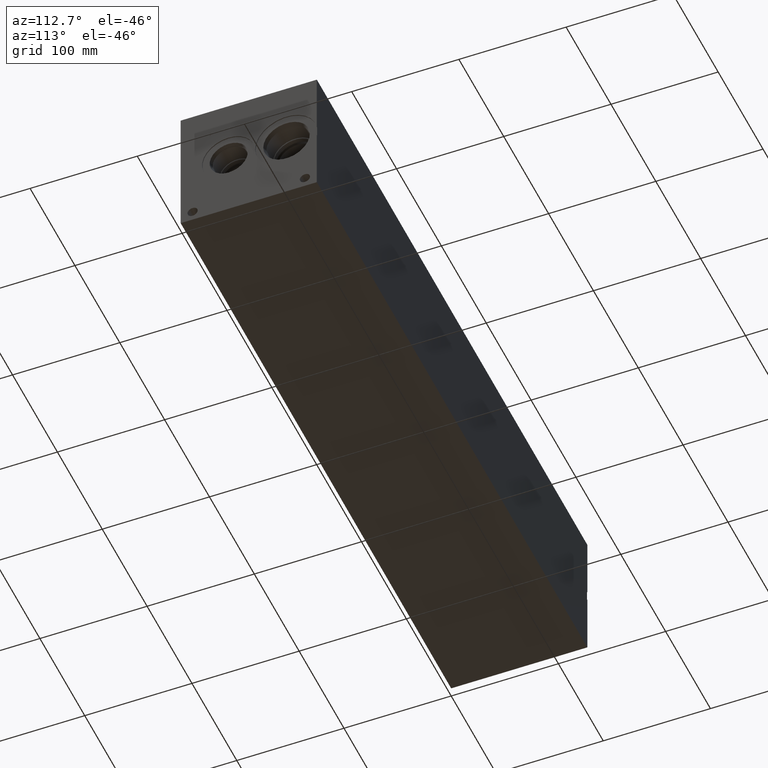
[diagram: clean part render]
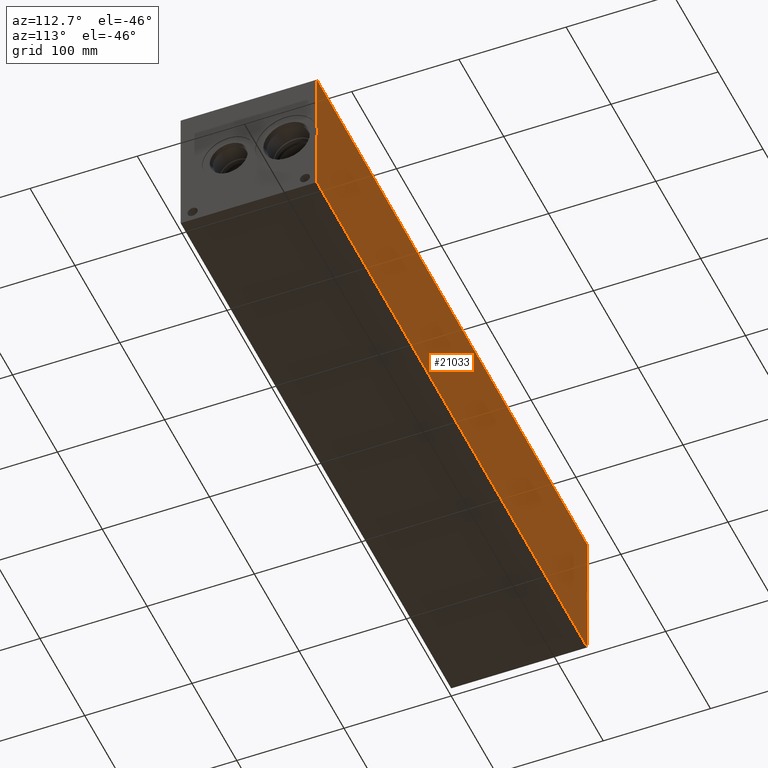
[diagram: same view with one face highlighted and labeled with its STEP entity id]
A machine part, auxiliary view. The second image highlights one B-rep face of the part: STEP entity #21033.
In plain terms, the highlighted planar face has unit normal (0, 1, 0).
Its self-contained STEP definition (entity closure, byte-faithful):
#2774=FACE_OUTER_BOUND('',#4009,.T.);
#4009=EDGE_LOOP('',(#17082,#17083,#17084,#17085,#17086,#17087,#17088,#17089,
#17090,#17091,#17092,#17093));
#4600=LINE('',#28455,#6378);
#4604=LINE('',#28462,#6382);
#4661=LINE('',#28730,#6439);
#4665=LINE('',#28737,#6443);
#5947=LINE('',#35084,#7725);
#5948=LINE('',#35089,#7726);
#5949=LINE('',#35090,#7727);
#5971=LINE('',#35222,#7749);
#5972=LINE('',#35229,#7750);
#5973=LINE('',#35230,#7751);
#5977=LINE('',#35246,#7755);
#5978=LINE('',#35247,#7756);
#6378=VECTOR('',#23209,10.);
#6382=VECTOR('',#23213,10.);
#6439=VECTOR('',#23322,10.);
#6443=VECTOR('',#23326,10.);
#7725=VECTOR('',#25556,10.);
#7726=VECTOR('',#25563,10.);
#7727=VECTOR('',#25564,10.);
#7749=VECTOR('',#25718,10.);
#7750=VECTOR('',#25727,10.);
#7751=VECTOR('',#25728,10.);
#7755=VECTOR('',#25748,10.);
#7756=VECTOR('',#25749,10.);
#8148=VERTEX_POINT('',#28451);
#8149=VERTEX_POINT('',#28452);
#8150=VERTEX_POINT('',#28454);
#8153=VERTEX_POINT('',#28460);
#8208=VERTEX_POINT('',#28726);
#8209=VERTEX_POINT('',#28727);
#8210=VERTEX_POINT('',#28729);
#8213=VERTEX_POINT('',#28735);
#9395=VERTEX_POINT('',#35082);
#9396=VERTEX_POINT('',#35083);
#9440=VERTEX_POINT('',#35220);
#9441=VERTEX_POINT('',#35221);
#10246=EDGE_CURVE('',#8149,#8150,#4600,.T.);
#10250=EDGE_CURVE('',#8153,#8148,#4604,.T.);
#10330=EDGE_CURVE('',#8210,#8209,#4661,.T.);
#10334=EDGE_CURVE('',#8208,#8213,#4665,.T.);
#12090=EDGE_CURVE('',#9395,#9396,#5947,.T.);
#12093=EDGE_CURVE('',#9396,#8148,#5948,.T.);
#12094=EDGE_CURVE('',#8149,#9395,#5949,.T.);
#12154=EDGE_CURVE('',#9440,#9441,#5971,.T.);
#12158=EDGE_CURVE('',#8209,#9440,#5972,.T.);
#12159=EDGE_CURVE('',#9441,#8208,#5973,.T.);
#12167=EDGE_CURVE('',#8153,#8210,#5977,.T.);
#12168=EDGE_CURVE('',#8150,#8213,#5978,.T.);
#17082=ORIENTED_EDGE('',*,*,#12093,.T.);
#17083=ORIENTED_EDGE('',*,*,#10250,.F.);
#17084=ORIENTED_EDGE('',*,*,#12167,.T.);
#17085=ORIENTED_EDGE('',*,*,#10330,.T.);
#17086=ORIENTED_EDGE('',*,*,#12158,.T.);
#17087=ORIENTED_EDGE('',*,*,#12154,.T.);
#17088=ORIENTED_EDGE('',*,*,#12159,.T.);
#17089=ORIENTED_EDGE('',*,*,#10334,.T.);
#17090=ORIENTED_EDGE('',*,*,#12168,.F.);
#17091=ORIENTED_EDGE('',*,*,#10246,.F.);
#17092=ORIENTED_EDGE('',*,*,#12094,.T.);
#17093=ORIENTED_EDGE('',*,*,#12090,.T.);
#19586=PLANE('',#22057);
#21033=ADVANCED_FACE('',(#2774),#19586,.T.);
#22057=AXIS2_PLACEMENT_3D('',#35245,#25746,#25747);
#23209=DIRECTION('',(0.,0.,1.));
#23213=DIRECTION('',(0.,0.,1.));
#23322=DIRECTION('',(0.,0.,1.));
#23326=DIRECTION('',(0.,0.,1.));
#25556=DIRECTION('',(0.,0.,-1.));
#25563=DIRECTION('',(1.,0.,0.));
#25564=DIRECTION('',(-1.,0.,0.));
#25718=DIRECTION('',(0.,0.,1.));
#25727=DIRECTION('',(1.,0.,0.));
#25728=DIRECTION('',(-1.,0.,0.));
#25746=DIRECTION('center_axis',(0.,1.,0.));
#25747=DIRECTION('ref_axis',(-1.,0.,0.));
#25748=DIRECTION('',(-1.,0.,0.));
#25749=DIRECTION('',(-1.,0.,0.));
#28451=CARTESIAN_POINT('',(603.25,127.,58.6635838723286));
#28452=CARTESIAN_POINT('',(603.25,127.,68.3364161276714));
#28454=CARTESIAN_POINT('',(603.25,127.,127.));
#28455=CARTESIAN_POINT('',(603.25,127.,0.));
#28460=CARTESIAN_POINT('',(603.25,127.,0.));
#28462=CARTESIAN_POINT('',(603.25,127.,0.));
#28726=CARTESIAN_POINT('',(0.,127.,68.3364161276714));
#28727=CARTESIAN_POINT('',(0.,127.,58.6635838723286));
#28729=CARTESIAN_POINT('',(0.,127.,0.));
#28730=CARTESIAN_POINT('',(0.,127.,0.));
#28735=CARTESIAN_POINT('',(0.,127.,127.));
#28737=CARTESIAN_POINT('',(0.,127.,0.));
#35082=CARTESIAN_POINT('',(602.4626,127.,68.3364161276714));
#35083=CARTESIAN_POINT('',(602.4626,127.,58.6635838723286));
#35084=CARTESIAN_POINT('',(602.4626,127.,31.75));
#35089=CARTESIAN_POINT('',(602.8563,127.,58.6635838723286));
#35090=CARTESIAN_POINT('',(602.8563,127.,68.3364161276714));
#35220=CARTESIAN_POINT('',(0.787400000000034,127.,58.6635838723286));
#35221=CARTESIAN_POINT('',(0.787400000000034,127.,68.3364161276714));
#35222=CARTESIAN_POINT('',(0.787400000000034,127.,42.62755));
#35229=CARTESIAN_POINT('',(0.393699999999981,127.,58.6635838723286));
#35230=CARTESIAN_POINT('',(0.393699999999981,127.,68.3364161276714));
#35245=CARTESIAN_POINT('Origin',(603.25,127.,0.));
#35246=CARTESIAN_POINT('',(603.25,127.,0.));
#35247=CARTESIAN_POINT('',(603.25,127.,127.));